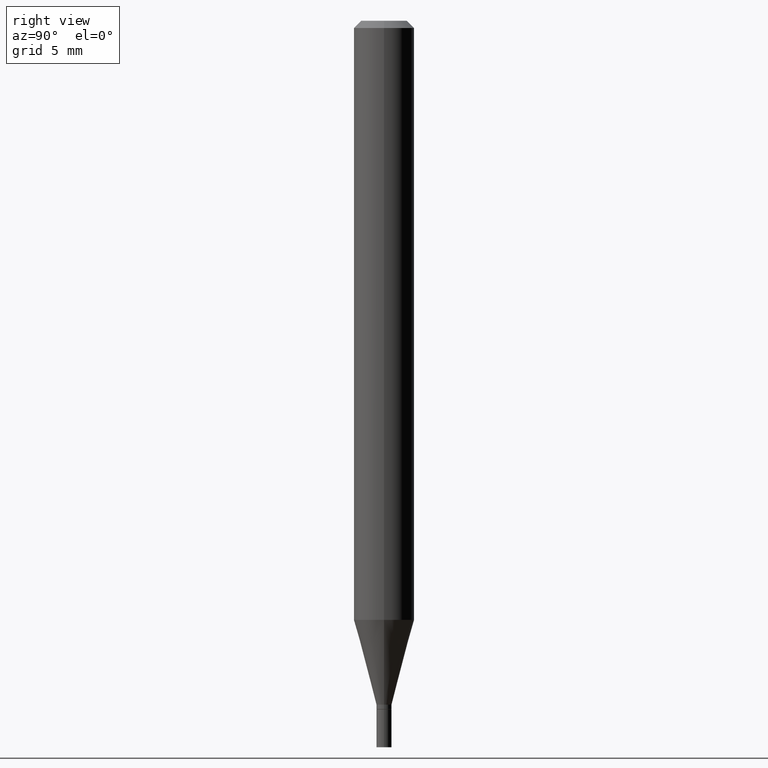
[diagram: clean part render]
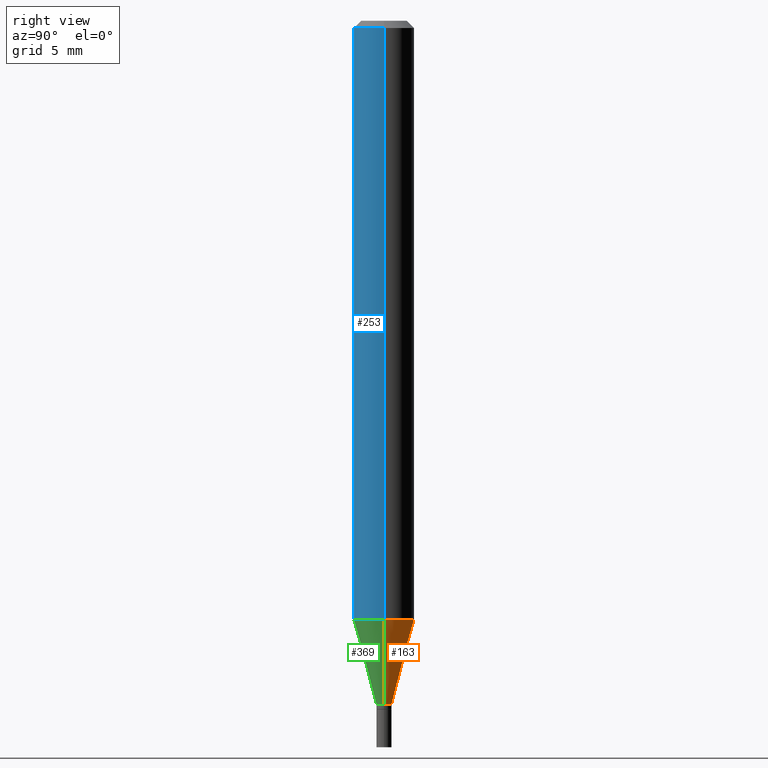
[diagram: same view with three faces highlighted in distinct colors, each labeled with its STEP entity id]
A machine part, right view with three faces highlighted in distinct colors.
Their STEP definitions:

[orange] entity #163 — the highlighted conical surface has half-angle 15 deg.
#5 = ORIENTED_EDGE ( 'NONE', *, *, #172, .F. ) ;
#6 = DIRECTION ( 'NONE',  ( -2.445468806185136597E-29, 3.491481338843145583E-15, 1.000000000000000000 ) ) ;
#7 = DIRECTION ( 'NONE',  ( 1.000000000000000000, -6.982962677686252511E-15, 0.000000000000000000 ) ) ;
#11 = CARTESIAN_POINT ( 'NONE',  ( -0.01559999999999992816, -4.346942166289046833E-15, -1.412000000000000144 ) ) ;
#13 = EDGE_LOOP ( 'NONE', ( #21, #149, #5, #464 ) ) ;
#21 = ORIENTED_EDGE ( 'NONE', *, *, #282, .T. ) ;
#33 = CARTESIAN_POINT ( 'NONE',  ( 3.024963765565350895E-29, -4.318846558760209820E-15, -1.236966817125020102 ) ) ;
#36 = CARTESIAN_POINT ( 'NONE',  ( -0.06250000000000000000, -3.874757348910146415E-15, -1.236966817125020102 ) ) ;
#52 = CARTESIAN_POINT ( 'NONE',  ( 0.06250000000000000000, -4.755281726115601490E-15, -1.236966817125020102 ) ) ;
#64 = FACE_OUTER_BOUND ( 'NONE', #13, .T. ) ;
#65 = CIRCLE ( 'NONE', #213, 0.06250000000000000000 ) ;
#68 = LINE ( 'NONE', #104, #349 ) ;
#77 = DIRECTION ( 'NONE',  ( -0.2588190451025215166, 5.211531920934551042E-15, 0.9659258262890679791 ) ) ;
#104 = CARTESIAN_POINT ( 'NONE',  ( -0.01559999999999992816, -4.819126983667946462E-15, -1.412000000000000144 ) ) ;
#110 = CIRCLE ( 'NONE', #376, 0.01559999999999992816 ) ;
#120 = CARTESIAN_POINT ( 'NONE',  ( 3.453001954333413314E-29, -4.929971650446521716E-15, -1.412000000000000144 ) ) ;
#133 = EDGE_CURVE ( 'NONE', #373, #197, #68, .T. ) ;
#145 = CONICAL_SURFACE ( 'NONE', #280, 0.01559999999999992816, 0.2617993877991502405 ) ;
#149 = ORIENTED_EDGE ( 'NONE', *, *, #133, .T. ) ;
#163 = ADVANCED_FACE ( 'NONE', ( #64 ), #145, .T. ) ;
#172 = EDGE_CURVE ( 'NONE', #410, #197, #65, .T. ) ;
#197 = VERTEX_POINT ( 'NONE', #36 ) ;
#199 = VECTOR ( 'NONE', #364, 39.37007874015748143 ) ;
#206 = DIRECTION ( 'NONE',  ( 1.000000000000000000, -6.982962677686262766E-15, 0.000000000000000000 ) ) ;
#213 = AXIS2_PLACEMENT_3D ( 'NONE', #33, #319, #206 ) ;
#217 = CARTESIAN_POINT ( 'NONE',  ( 0.01559999999999992816, -5.038905868218426694E-15, -1.412000000000000144 ) ) ;
#259 = CARTESIAN_POINT ( 'NONE',  ( 0.01559999999999992816, -5.038905868218426694E-15, -1.412000000000000144 ) ) ;
#280 = AXIS2_PLACEMENT_3D ( 'NONE', #288, #316, #426 ) ;
#282 = EDGE_CURVE ( 'NONE', #371, #373, #110, .T. ) ;
#288 = CARTESIAN_POINT ( 'NONE',  ( 3.453001954333413314E-29, -4.929971650446521716E-15, -1.412000000000000144 ) ) ;
#316 = DIRECTION ( 'NONE',  ( -2.445468806185136597E-29, 3.491481338843145583E-15, 1.000000000000000000 ) ) ;
#319 = DIRECTION ( 'NONE',  ( -2.445468806185136597E-29, 3.491481338843145583E-15, 1.000000000000000000 ) ) ;
#331 = EDGE_CURVE ( 'NONE', #371, #410, #336, .T. ) ;
#336 = LINE ( 'NONE', #259, #199 ) ;
#349 = VECTOR ( 'NONE', #77, 39.37007874015748143 ) ;
#364 = DIRECTION ( 'NONE',  ( 0.2588190451025215166, 1.565188264969620784E-15, 0.9659258262890679791 ) ) ;
#371 = VERTEX_POINT ( 'NONE', #217 ) ;
#373 = VERTEX_POINT ( 'NONE', #11 ) ;
#376 = AXIS2_PLACEMENT_3D ( 'NONE', #120, #6, #7 ) ;
#410 = VERTEX_POINT ( 'NONE', #52 ) ;
#426 = DIRECTION ( 'NONE',  ( 1.000000000000000000, -6.982962677686252511E-15, 0.000000000000000000 ) ) ;
#464 = ORIENTED_EDGE ( 'NONE', *, *, #331, .F. ) ;

[blue] entity #253 — the highlighted cylindrical surface (edge-blend (fillet) strip) has radius 1.5875 mm, axis along (-0, 0, 1).
#2 = EDGE_CURVE ( 'NONE', #197, #410, #57, .T. ) ;
#20 = DIRECTION ( 'NONE',  ( 1.000000000000000000, -6.982962677686262766E-15, 0.000000000000000000 ) ) ;
#36 = CARTESIAN_POINT ( 'NONE',  ( -0.06250000000000000000, -3.874757348910146415E-15, -1.236966817125020102 ) ) ;
#40 = EDGE_CURVE ( 'NONE', #224, #453, #370, .T. ) ;
#44 = CARTESIAN_POINT ( 'NONE',  ( 0.000000000000000000, 0.000000000000000000, 0.000000000000000000 ) ) ;
#52 = CARTESIAN_POINT ( 'NONE',  ( 0.06250000000000000000, -4.755281726115601490E-15, -1.236966817125020102 ) ) ;
#57 = CIRCLE ( 'NONE', #363, 0.06250000000000000000 ) ;
#58 = DIRECTION ( 'NONE',  ( -2.445468806185136597E-29, 3.491481338843145583E-15, 1.000000000000000000 ) ) ;
#87 = DIRECTION ( 'NONE',  ( -2.445468806185136597E-29, 3.491481338843145583E-15, 1.000000000000000000 ) ) ;
#112 = CYLINDRICAL_SURFACE ( 'NONE', #152, 0.06250000000000001388 ) ;
#152 = AXIS2_PLACEMENT_3D ( 'NONE', #44, #87, #223 ) ;
#171 = DIRECTION ( 'NONE',  ( -2.445468806185136597E-29, 3.491481338843145583E-15, 1.000000000000000000 ) ) ;
#182 = LINE ( 'NONE', #435, #222 ) ;
#192 = AXIS2_PLACEMENT_3D ( 'NONE', #392, #171, #323 ) ;
#197 = VERTEX_POINT ( 'NONE', #36 ) ;
#219 = DIRECTION ( 'NONE',  ( -2.445468806185136877E-29, 3.491481338843145188E-15, 1.000000000000000000 ) ) ;
#220 = VECTOR ( 'NONE', #219, 39.37007874015748143 ) ;
#222 = VECTOR ( 'NONE', #325, 39.37007874015748143 ) ;
#223 = DIRECTION ( 'NONE',  ( 1.000000000000000000, -6.982962677686265922E-15, 4.876176775795935232E-29 ) ) ;
#224 = VERTEX_POINT ( 'NONE', #297 ) ;
#229 = ORIENTED_EDGE ( 'NONE', *, *, #40, .F. ) ;
#231 = EDGE_CURVE ( 'NONE', #410, #453, #405, .T. ) ;
#233 = CARTESIAN_POINT ( 'NONE',  ( 3.024963765565350895E-29, -4.318846558760209820E-15, -1.236966817125020102 ) ) ;
#239 = CARTESIAN_POINT ( 'NONE',  ( 0.06250000000000001388, -4.888073874380389458E-16, -0.01499999999999999944 ) ) ;
#242 = ORIENTED_EDGE ( 'NONE', *, *, #2, .T. ) ;
#253 = ADVANCED_FACE ( 'NONE', ( #264 ), #112, .T. ) ;
#264 = FACE_OUTER_BOUND ( 'NONE', #438, .T. ) ;
#297 = CARTESIAN_POINT ( 'NONE',  ( -0.06250000000000002776, -1.741520179571366031E-15, -0.01499999999999999944 ) ) ;
#315 = EDGE_CURVE ( 'NONE', #197, #224, #182, .T. ) ;
#323 = DIRECTION ( 'NONE',  ( 1.000000000000000000, -6.982962677686267499E-15, 0.000000000000000000 ) ) ;
#325 = DIRECTION ( 'NONE',  ( -2.445468806185136877E-29, 3.491481338843145188E-15, 1.000000000000000000 ) ) ;
#363 = AXIS2_PLACEMENT_3D ( 'NONE', #233, #58, #20 ) ;
#368 = CARTESIAN_POINT ( 'NONE',  ( 0.06250000000000001388, -4.364351673553917187E-16, 3.047610484872460221E-30 ) ) ;
#370 = CIRCLE ( 'NONE', #192, 0.06250000000000001388 ) ;
#392 = CARTESIAN_POINT ( 'NONE',  ( 3.668203209277705088E-31, -5.237222008264718399E-17, -0.01499999999999999944 ) ) ;
#405 = LINE ( 'NONE', #368, #220 ) ;
#410 = VERTEX_POINT ( 'NONE', #52 ) ;
#412 = ORIENTED_EDGE ( 'NONE', *, *, #231, .T. ) ;
#435 = CARTESIAN_POINT ( 'NONE',  ( -0.06250000000000001388, 4.440892098500627148E-16, -3.074334431409316814E-30 ) ) ;
#436 = ORIENTED_EDGE ( 'NONE', *, *, #315, .F. ) ;
#438 = EDGE_LOOP ( 'NONE', ( #436, #242, #412, #229 ) ) ;
#453 = VERTEX_POINT ( 'NONE', #239 ) ;

[green] entity #369 — the highlighted conical surface has half-angle 15 deg.
#2 = EDGE_CURVE ( 'NONE', #197, #410, #57, .T. ) ;
#4 = CARTESIAN_POINT ( 'NONE',  ( 3.453001954333413314E-29, -4.929971650446521716E-15, -1.412000000000000144 ) ) ;
#11 = CARTESIAN_POINT ( 'NONE',  ( -0.01559999999999992816, -4.346942166289046833E-15, -1.412000000000000144 ) ) ;
#20 = DIRECTION ( 'NONE',  ( 1.000000000000000000, -6.982962677686262766E-15, 0.000000000000000000 ) ) ;
#36 = CARTESIAN_POINT ( 'NONE',  ( -0.06250000000000000000, -3.874757348910146415E-15, -1.236966817125020102 ) ) ;
#45 = FACE_OUTER_BOUND ( 'NONE', #238, .T. ) ;
#48 = DIRECTION ( 'NONE',  ( -2.445468806185136597E-29, 3.491481338843145583E-15, 1.000000000000000000 ) ) ;
#52 = CARTESIAN_POINT ( 'NONE',  ( 0.06250000000000000000, -4.755281726115601490E-15, -1.236966817125020102 ) ) ;
#57 = CIRCLE ( 'NONE', #363, 0.06250000000000000000 ) ;
#58 = DIRECTION ( 'NONE',  ( -2.445468806185136597E-29, 3.491481338843145583E-15, 1.000000000000000000 ) ) ;
#68 = LINE ( 'NONE', #104, #349 ) ;
#70 = ORIENTED_EDGE ( 'NONE', *, *, #331, .T. ) ;
#77 = DIRECTION ( 'NONE',  ( -0.2588190451025215166, 5.211531920934551042E-15, 0.9659258262890679791 ) ) ;
#86 = ORIENTED_EDGE ( 'NONE', *, *, #383, .T. ) ;
#104 = CARTESIAN_POINT ( 'NONE',  ( -0.01559999999999992816, -4.819126983667946462E-15, -1.412000000000000144 ) ) ;
#133 = EDGE_CURVE ( 'NONE', #373, #197, #68, .T. ) ;
#146 = CARTESIAN_POINT ( 'NONE',  ( 3.453001954333413314E-29, -4.929971650446521716E-15, -1.412000000000000144 ) ) ;
#188 = DIRECTION ( 'NONE',  ( -2.445468806185136597E-29, 3.491481338843145583E-15, 1.000000000000000000 ) ) ;
#197 = VERTEX_POINT ( 'NONE', #36 ) ;
#199 = VECTOR ( 'NONE', #364, 39.37007874015748143 ) ;
#217 = CARTESIAN_POINT ( 'NONE',  ( 0.01559999999999992816, -5.038905868218426694E-15, -1.412000000000000144 ) ) ;
#233 = CARTESIAN_POINT ( 'NONE',  ( 3.024963765565350895E-29, -4.318846558760209820E-15, -1.236966817125020102 ) ) ;
#238 = EDGE_LOOP ( 'NONE', ( #329, #86, #70, #295 ) ) ;
#256 = DIRECTION ( 'NONE',  ( 1.000000000000000000, -6.982962677686252511E-15, 0.000000000000000000 ) ) ;
#259 = CARTESIAN_POINT ( 'NONE',  ( 0.01559999999999992816, -5.038905868218426694E-15, -1.412000000000000144 ) ) ;
#295 = ORIENTED_EDGE ( 'NONE', *, *, #2, .F. ) ;
#329 = ORIENTED_EDGE ( 'NONE', *, *, #133, .F. ) ;
#331 = EDGE_CURVE ( 'NONE', #371, #410, #336, .T. ) ;
#336 = LINE ( 'NONE', #259, #199 ) ;
#349 = VECTOR ( 'NONE', #77, 39.37007874015748143 ) ;
#358 = CIRCLE ( 'NONE', #445, 0.01559999999999992816 ) ;
#363 = AXIS2_PLACEMENT_3D ( 'NONE', #233, #58, #20 ) ;
#364 = DIRECTION ( 'NONE',  ( 0.2588190451025215166, 1.565188264969620784E-15, 0.9659258262890679791 ) ) ;
#365 = AXIS2_PLACEMENT_3D ( 'NONE', #146, #188, #439 ) ;
#369 = ADVANCED_FACE ( 'NONE', ( #45 ), #462, .T. ) ;
#371 = VERTEX_POINT ( 'NONE', #217 ) ;
#373 = VERTEX_POINT ( 'NONE', #11 ) ;
#383 = EDGE_CURVE ( 'NONE', #373, #371, #358, .T. ) ;
#410 = VERTEX_POINT ( 'NONE', #52 ) ;
#439 = DIRECTION ( 'NONE',  ( 1.000000000000000000, -6.982962677686252511E-15, 0.000000000000000000 ) ) ;
#445 = AXIS2_PLACEMENT_3D ( 'NONE', #4, #48, #256 ) ;
#462 = CONICAL_SURFACE ( 'NONE', #365, 0.01559999999999992816, 0.2617993877991502405 ) ;